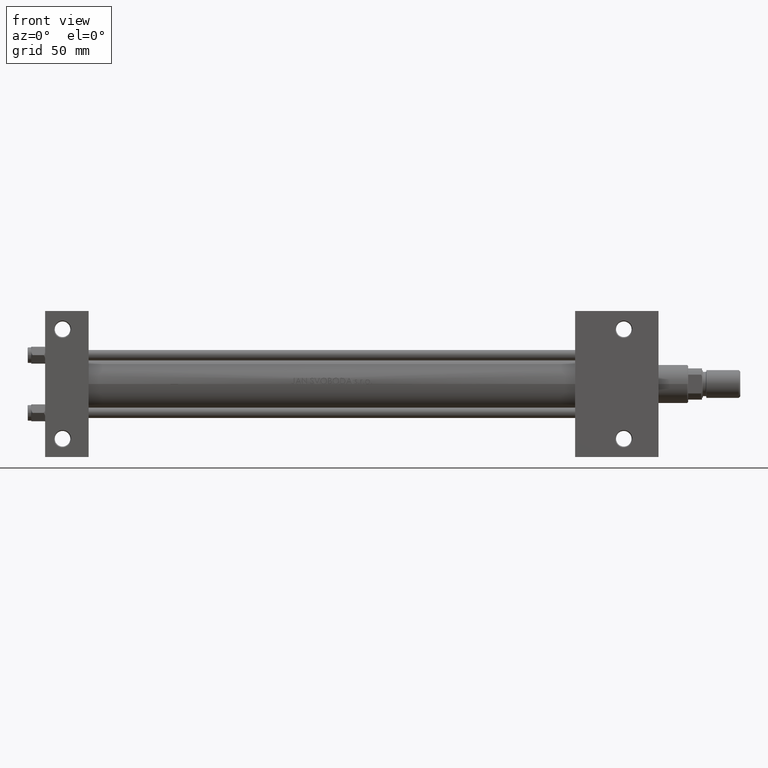
[diagram: clean part render]
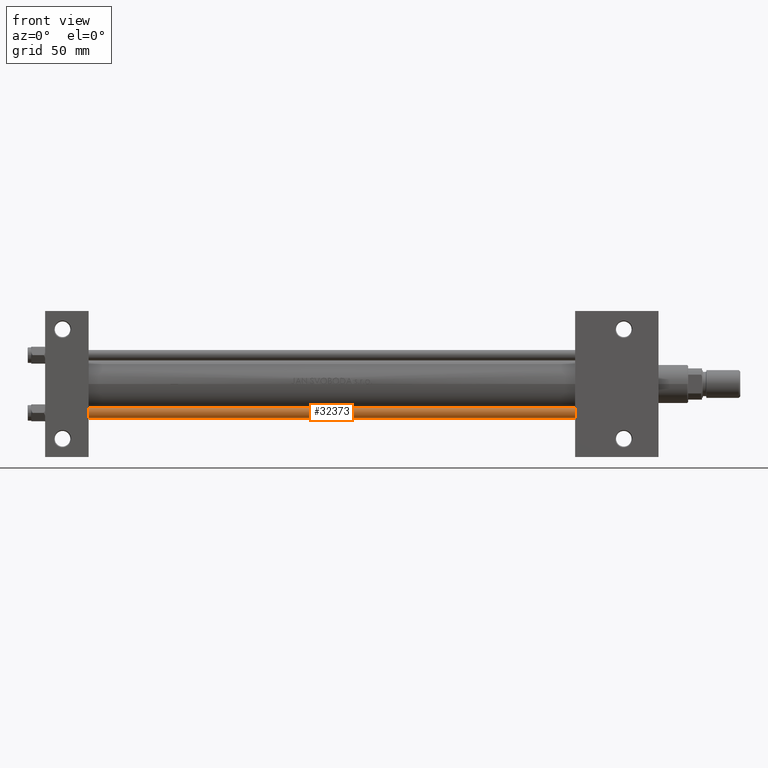
[diagram: same view with one face highlighted and labeled with its STEP entity id]
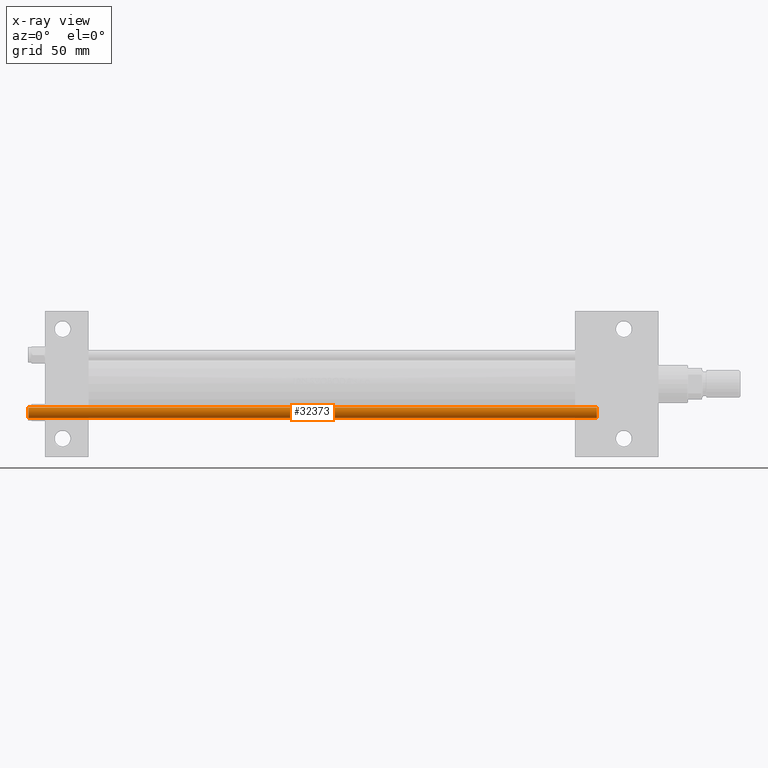
[diagram: x-ray of the same camera — body ghosted, the highlighted face saturated]
A machine part, front view. The second image highlights one B-rep face of the part: STEP entity #32373.
The next image is the same camera in x-ray: the body ghosted, the highlighted face saturated — about 0% of this face is hidden behind the body in this view.
In plain terms, the highlighted cylindrical surface (edge-blend (fillet) strip) has radius 3 mm, axis along (-1, 0, 0).
Its self-contained STEP definition (entity closure, byte-faithful):
#1083 = CYLINDRICAL_SURFACE ( 'NONE', #9350, 3.000000000000000444 ) ;
#1192 = CIRCLE ( 'NONE', #40769, 3.000000000000000444 ) ;
#4193 = VECTOR ( 'NONE', #14431, 1000.000000000000000 ) ;
#6174 = LINE ( 'NONE', #47228, #4193 ) ;
#8137 = CARTESIAN_POINT ( 'NONE',  ( 0.000000000000000000, 0.000000000000000000, 328.0000000000000000 ) ) ;
#9350 = AXIS2_PLACEMENT_3D ( 'NONE', #8137, #15675, #30028 ) ;
#11468 = ORIENTED_EDGE ( 'NONE', *, *, #38958, .F. ) ;
#12245 = EDGE_CURVE ( 'NONE', #34271, #34216, #1192, .T. ) ;
#12872 = EDGE_CURVE ( 'NONE', #34216, #32441, #27062, .T. ) ;
#13757 = VERTEX_POINT ( 'NONE', #46249 ) ;
#13925 = ORIENTED_EDGE ( 'NONE', *, *, #12245, .T. ) ;
#14431 = DIRECTION ( 'NONE',  ( -0.000000000000000000, -0.000000000000000000, -1.000000000000000000 ) ) ;
#15675 = DIRECTION ( 'NONE',  ( -0.000000000000000000, -0.000000000000000000, -1.000000000000000000 ) ) ;
#16595 = DIRECTION ( 'NONE',  ( -0.000000000000000000, -0.000000000000000000, -1.000000000000000000 ) ) ;
#19113 = ORIENTED_EDGE ( 'NONE', *, *, #27938, .T. ) ;
#20597 = CARTESIAN_POINT ( 'NONE',  ( 0.000000000000000000, 0.000000000000000000, 327.5000000000000000 ) ) ;
#22258 = DIRECTION ( 'NONE',  ( -0.000000000000000000, -0.000000000000000000, 1.000000000000000000 ) ) ;
#24012 = DIRECTION ( 'NONE',  ( 0.000000000000000000, 0.000000000000000000, -1.000000000000000000 ) ) ;
#25355 = CARTESIAN_POINT ( 'NONE',  ( -3.000000000000000444, 0.000000000000000000, 327.5000000000000000 ) ) ;
#25411 = DIRECTION ( 'NONE',  ( 1.000000000000000000, 0.000000000000000000, 0.000000000000000000 ) ) ;
#25886 = EDGE_LOOP ( 'NONE', ( #13925, #36143, #19113, #11468 ) ) ;
#27062 = LINE ( 'NONE', #38694, #39230 ) ;
#27828 = CIRCLE ( 'NONE', #30150, 3.000000000000000444 ) ;
#27938 = EDGE_CURVE ( 'NONE', #32441, #13757, #27828, .T. ) ;
#30028 = DIRECTION ( 'NONE',  ( -1.000000000000000000, 0.000000000000000000, 0.000000000000000000 ) ) ;
#30150 = AXIS2_PLACEMENT_3D ( 'NONE', #44097, #22258, #25411 ) ;
#31917 = CARTESIAN_POINT ( 'NONE',  ( 3.000000000000000444, 3.673940397442060361E-16, 327.5000000000000000 ) ) ;
#32373 = ADVANCED_FACE ( 'NONE', ( #37302 ), #1083, .T. ) ;
#32441 = VERTEX_POINT ( 'NONE', #45562 ) ;
#34216 = VERTEX_POINT ( 'NONE', #31917 ) ;
#34271 = VERTEX_POINT ( 'NONE', #25355 ) ;
#36143 = ORIENTED_EDGE ( 'NONE', *, *, #12872, .T. ) ;
#37302 = FACE_OUTER_BOUND ( 'NONE', #25886, .T. ) ;
#38337 = DIRECTION ( 'NONE',  ( 1.000000000000000000, 0.000000000000000000, 0.000000000000000000 ) ) ;
#38694 = CARTESIAN_POINT ( 'NONE',  ( 3.000000000000000444, 3.673940397442060361E-16, 328.0000000000000000 ) ) ;
#38958 = EDGE_CURVE ( 'NONE', #34271, #13757, #6174, .T. ) ;
#39230 = VECTOR ( 'NONE', #16595, 1000.000000000000000 ) ;
#40769 = AXIS2_PLACEMENT_3D ( 'NONE', #20597, #24012, #38337 ) ;
#44097 = CARTESIAN_POINT ( 'NONE',  ( 0.000000000000000000, 0.000000000000000000, 0.5000000000000559552 ) ) ;
#45562 = CARTESIAN_POINT ( 'NONE',  ( 3.000000000000000444, 3.673940397442060361E-16, 0.5000000000000559552 ) ) ;
#46249 = CARTESIAN_POINT ( 'NONE',  ( -3.000000000000000444, 0.000000000000000000, 0.5000000000000559552 ) ) ;
#47228 = CARTESIAN_POINT ( 'NONE',  ( -3.000000000000000444, 0.000000000000000000, 328.0000000000000000 ) ) ;